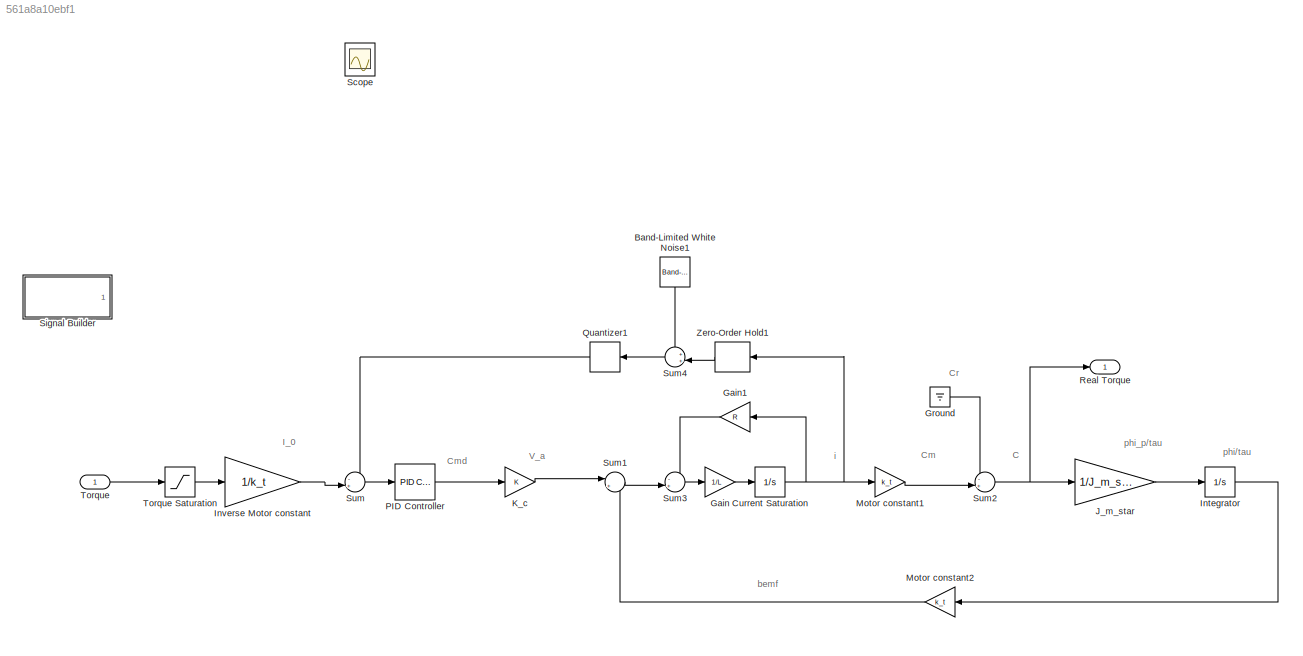
MODEL slx_561a8a10ebf1
KIND model
CONFIG AbsTol = auto
CONFIG EnableMultiTasking = off
CONFIG FixedStep = Ts
CONFIG MaxStep = auto
CONFIG MinStep = auto
CONFIG RelTol = 1e-3
CONFIG SampleTimeConstraint = Unconstrained
CONFIG Solver = FixedStepAuto
CONFIG SolverName = FixedStepAuto
CONFIG StartTime = 0.0
CONFIG StopTime = 8
BLOCK [Reference] Band-Limited White Noise1  REF=simulink/Sources/Band-Limited
White Noise
  Ports = [0, 1]
  SourceBlock = simulink/Sources/Band-Limited\nWhite Noise
  SourceProductBaseCode = SL
  SourceProductName = Simulink
  SourceType = Band-Limited White Noise.
BLOCK [Integrator] Current Saturation
  LimitOutput = on
  LowerSaturationLimit = -I_max
  Ports = [1, 1]
  UpperSaturationLimit = I_max
BLOCK [Gain] Gain
  Gain = 1/L
  OutDataTypeStr = Inherit: Inherit via internal rule
  ParamDataTypeStr = Inherit: Inherit via internal rule
  SaturateOnIntegerOverflow = off
BLOCK [Gain] Gain1
  Gain = R
  OutDataTypeStr = Inherit: Inherit via internal rule
  ParamDataTypeStr = Inherit: Inherit via internal rule
  SaturateOnIntegerOverflow = off
BLOCK [Ground] Ground
BLOCK [Integrator] Integrator
  Ports = [1, 1]
BLOCK [Gain] Inverse Motor constant
  Gain = 1/k_t
  OutDataTypeStr = Inherit: Inherit via internal rule
  ParamDataTypeStr = Inherit: Inherit via internal rule
  SaturateOnIntegerOverflow = off
BLOCK [Gain] J_m_star 
  Gain = 1/J_m_star
  OutDataTypeStr = Inherit: Inherit via internal rule
  ParamDataTypeStr = Inherit: Inherit via internal rule
  SaturateOnIntegerOverflow = off
BLOCK [Gain] K_c
  OutDataTypeStr = Inherit: Inherit via internal rule
  ParamDataTypeStr = Inherit: Inherit via internal rule
  SaturateOnIntegerOverflow = off
BLOCK [Gain] Motor constant1
  Gain = k_t
  OutDataTypeStr = Inherit: Inherit via internal rule
  ParamDataTypeStr = Inherit: Inherit via internal rule
  SaturateOnIntegerOverflow = off
BLOCK [Gain] Motor constant2
  Gain = k_t
  OutDataTypeStr = Inherit: Inherit via internal rule
  ParamDataTypeStr = Inherit: Inherit via internal rule
  SaturateOnIntegerOverflow = off
BLOCK [Reference] PID Controller  REF=simulink/Continuous/PID Controller
  Ports = [1, 1]
  SourceBlock = simulink/Continuous/PID Controller
  SourceProductBaseCode = SL
  SourceProductName = Simulink
  SourceType = PID 1dof
BLOCK [Quantizer] Quantizer1
  QuantizationInterval = 1/sensitivity_arduino
BLOCK [Outport] Real Torque 
  IconDisplay = Port number
BLOCK [Scope] Scope
  Floating = off
  NumInputPorts = 2
  Ports = [2]
  ScopeSpecificationString = Simulink.scopes.TimeScopeBlockCfg('CurrentConfiguration', extmgr.ConfigurationSet(extmgr.Configuration('Core','General UI',true),extmgr.Configuration('Core','Source UI',true),extmgr.Configuration('Sources','WiredSimulink',true),extmgr.Configuration('Visuals','Time Domain',true,'SerializedDisplays',{struct('MinYLimReal','-22.89486','MaxYLimReal','-16.2184','YLabelReal','','MinYLimMag','0.00000','Ma...<+1430ch>
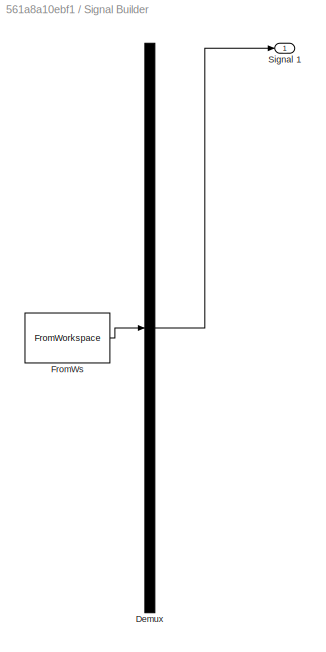
BLOCK [SubSystem] Signal Builder
  ClipboardFcn = sigbuilder_block('clipboard');
  CloseFcn = sigbuilder_block('close');
  Commented = on
  ContinueFcn = sigbuilder_block('continue');
  CopyFcn = sigbuilder_block('copy');
  DeleteFcn = sigbuilder_block('delete');
  LoadFcn = sigbuilder_block('load');
  MaskHideContents = on
  ModelCloseFcn = sigbuilder_block('modelClose');
  NameChangeFcn = sigbuilder_block('namechange');
  OpenFcn = sigbuilder_block('open',[440.25 156.75 544.5 355.5 ]);
  PauseFcn = sigbuilder_block('pause');
  Ports = [0, 1]
  PreSaveFcn = sigbuilder_block('preSave');
  RequestExecContextInheritance = off
  StartFcn = sigbuilder_block('start');
  StopFcn = sigbuilder_block('stop');
  Tag = STV Subsys
BLOCK [Demux] Signal Builder/Demux
  Outputs = 1
  Ports = [1, 1]
  Tag = STV Demux
BLOCK [FromWorkspace] Signal Builder/FromWs
  SampleTime = 0
  Tag = STV FromWs
  VariableName = tuvar
  ZeroCross = on
BLOCK [Outport] Signal Builder/Signal 1
  IconDisplay = Port number
  Tag = STV Outport
BLOCK [Sum] Sum
  IconShape = round
  InputSameDT = off
  Inputs = -+|
  OutDataTypeStr = Inherit: Inherit via internal rule
  Ports = [2, 1]
  SaturateOnIntegerOverflow = off
BLOCK [Sum] Sum1
  IconShape = round
  InputSameDT = off
  Inputs = |+-
  OutDataTypeStr = Inherit: Inherit via internal rule
  Ports = [2, 1]
  SaturateOnIntegerOverflow = off
BLOCK [Sum] Sum2
  IconShape = round
  InputSameDT = off
  Inputs = -+|
  OutDataTypeStr = Inherit: Inherit via internal rule
  Ports = [2, 1]
  SaturateOnIntegerOverflow = off
BLOCK [Sum] Sum3
  IconShape = round
  InputSameDT = off
  Inputs = -+|
  OutDataTypeStr = Inherit: Inherit via internal rule
  Ports = [2, 1]
  SaturateOnIntegerOverflow = off
BLOCK [Sum] Sum4
  IconShape = round
  InputSameDT = off
  Inputs = ++|
  OutDataTypeStr = Inherit: Inherit via internal rule
  Ports = [2, 1]
  SaturateOnIntegerOverflow = off
BLOCK [Inport] Torque
  IconDisplay = Port number
  SampleTime = Ts
BLOCK [Saturate] Torque Saturation
  InputPortMap = u0
  LowerLimit = -C_max
  Ports = [1, 1]
  UpperLimit = C_max
BLOCK [ZeroOrderHold] Zero-Order Hold1
  SampleTime = Ts
ANNOTATION (root): C
ANNOTATION (root): Cm
ANNOTATION (root): Cmd
ANNOTATION (root): Cr
ANNOTATION (root): I_0
ANNOTATION (root): V_a
ANNOTATION (root): bemf
ANNOTATION (root): i
ANNOTATION (root): phi/tau
ANNOTATION (root): phi_p/tau
LINE Band-Limited White Noise1:1 -> Sum4:1
NET Current Saturation:1 -> Gain1:1, Motor constant1:1, Zero-Order Hold1:1
LINE Gain1:1 -> Sum3:1
LINE Gain:1 -> Current Saturation:1
LINE Ground:1 -> Sum2:1
LINE Integrator:1 -> Motor constant2:1
LINE Inverse Motor constant:1 -> Sum:2
LINE J_m_star :1 -> Integrator:1
LINE K_c:1 -> Sum1:1
LINE Motor constant1:1 -> Sum2:2
LINE Motor constant2:1 -> Sum1:2
LINE PID Controller:1 -> K_c:1
LINE Quantizer1:1 -> Sum:1
LINE Sum1:1 -> Sum3:2
NET Sum2:1 -> J_m_star :1, Real Torque :1
LINE Sum3:1 -> Gain:1
LINE Sum4:1 -> Quantizer1:1
LINE Sum:1 -> PID Controller:1
LINE Torque Saturation:1 -> Inverse Motor constant:1
LINE Torque:1 -> Torque Saturation:1
LINE Zero-Order Hold1:1 -> Sum4:2
note: NET lines group one-source signal fan-out (src -> all destinations, sorted); 1:1 wires keep LINE
